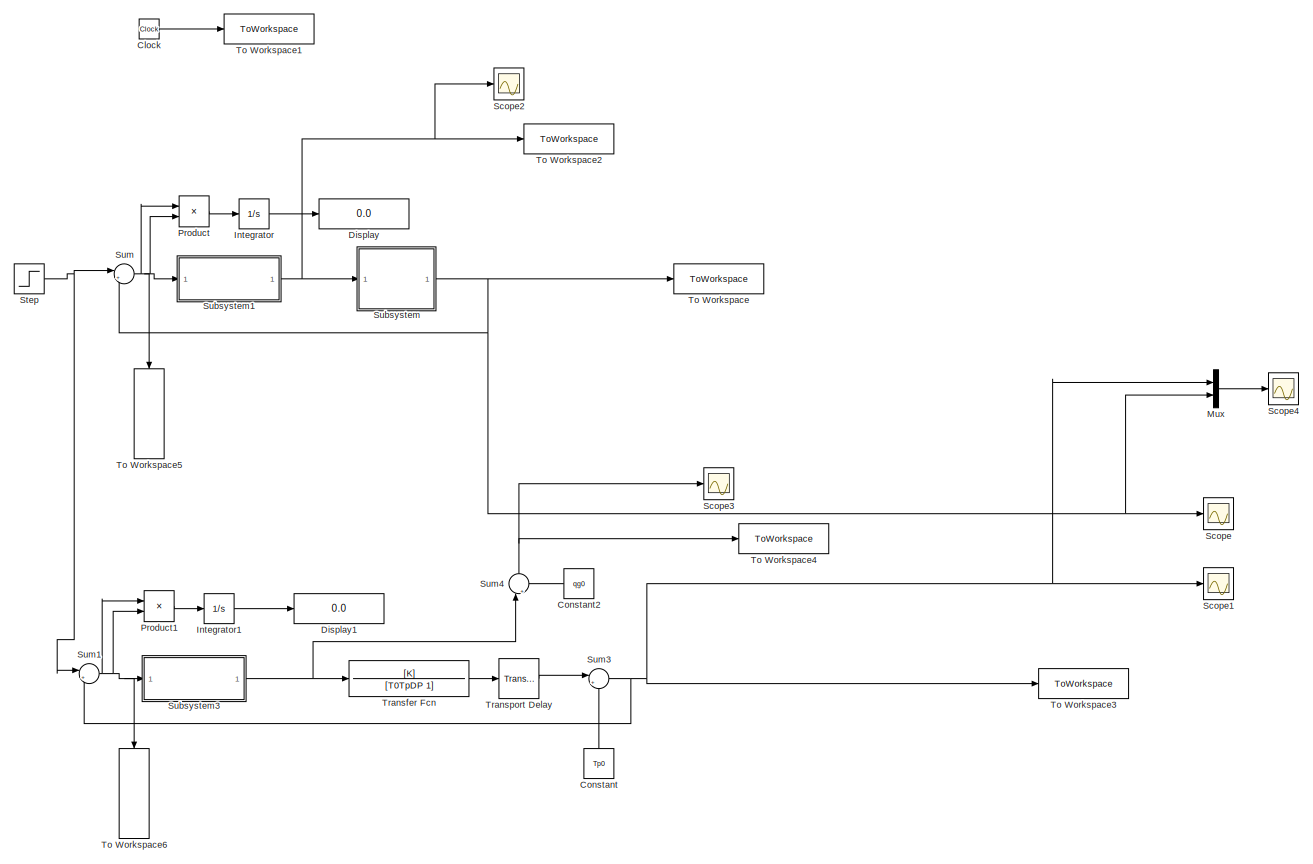
[diagram: root canvas - part 1/2, full width, top band]
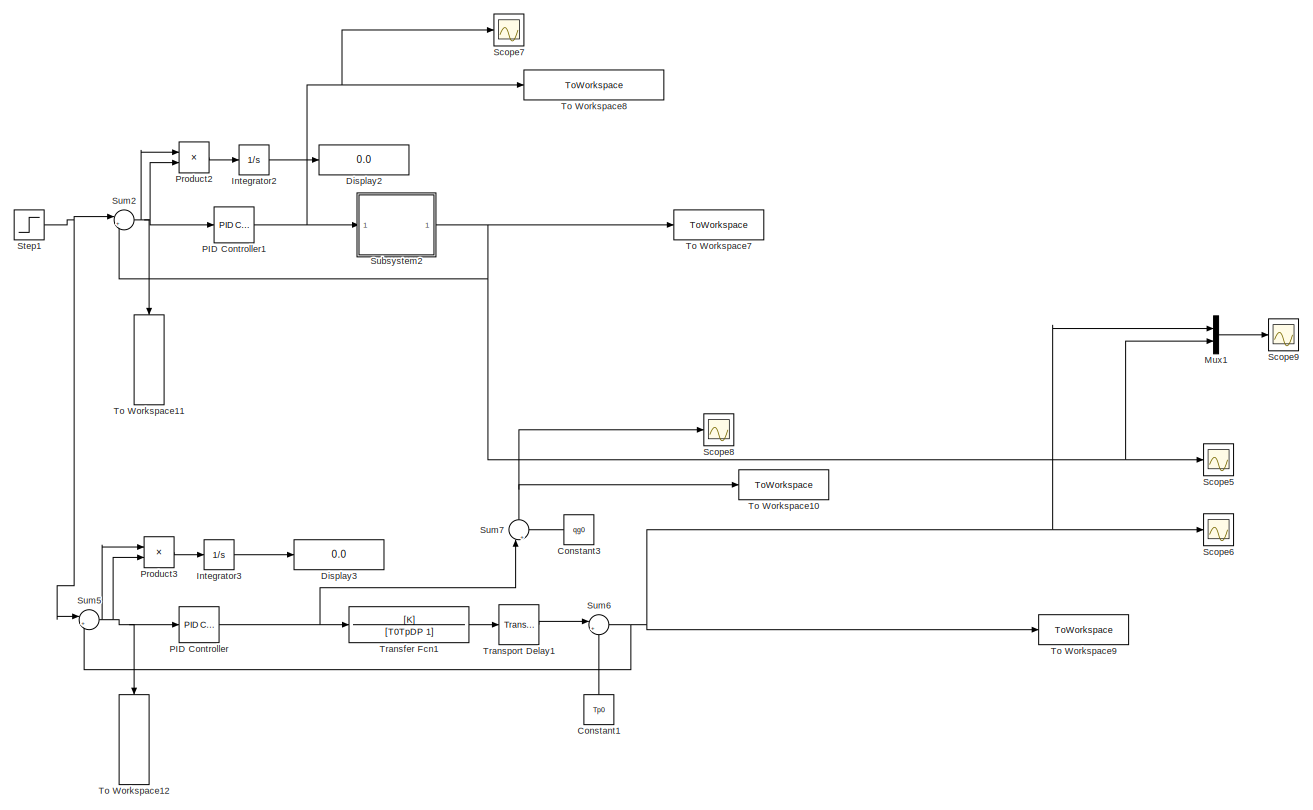
[diagram: root canvas - part 2/2, full width, bottom band]
MODEL slx_341e38c5a6c4
KIND model
CONFIG AbsTol = auto
CONFIG EnableMultiTasking = off
CONFIG FixedStep = auto
CONFIG MaxStep = 0.1
CONFIG MinStep = auto
CONFIG RelTol = 1e-3
CONFIG SampleTimeConstraint = Unconstrained
CONFIG SolverName = VariableStepAuto
CONFIG StartTime = 0.0
CONFIG StopTime = t_simulation
BLOCK [Clock] Clock
  Decimation = 1
BLOCK [Constant] Constant
  NameLocation = right
  Value = Tp0
BLOCK [Constant] Constant1
  NameLocation = right
  Value = Tp0
BLOCK [Constant] Constant2
  NameLocation = top
  Value = qg0
BLOCK [Constant] Constant3
  NameLocation = top
  Value = qg0
BLOCK [Display] Display
  Decimation = 1
  Format = short_e
BLOCK [Display] Display1
  Decimation = 1
  Format = short_e
BLOCK [Display] Display2
  Decimation = 1
  Format = short_e
BLOCK [Display] Display3
  Decimation = 1
  Format = short_e
BLOCK [Integrator] Integrator
BLOCK [Integrator] Integrator1
BLOCK [Integrator] Integrator2
BLOCK [Integrator] Integrator3
BLOCK [Mux] Mux
  DisplayOption = bar
  Inputs = 2
BLOCK [Mux] Mux1
  DisplayOption = bar
  Inputs = 2
BLOCK [Reference] PID Controller  REF=slpidlib/PID Controller
  LibrarySourceBlock = simulink/Continuous/PID Controller
  SourceBlock = slpidlib/PID Controller
  SourceType = PID 1dof
BLOCK [Reference] PID Controller1  REF=slpidlib/PID Controller
  LibrarySourceBlock = simulink/Continuous/PID Controller
  SourceBlock = slpidlib/PID Controller
  SourceType = PID 1dof
BLOCK [Product] Product
BLOCK [Product] Product1
BLOCK [Product] Product2
BLOCK [Product] Product3
BLOCK [Scope] Scope
  Floating = off
  NumInputPorts = 1
  ScopeSpecificationString = Simulink.scopes.TimeScopeBlockCfg('CurrentConfiguration', extmgr.ConfigurationSet(extmgr.Configuration('Core','General UI',true),extmgr.Configuration('Core','Source UI',true),extmgr.Configuration('Sources','WiredSimulink',true,'DataLoggingVariableName','ScopeData1'),extmgr.Configuration('Visuals','Time Domain',true,'SerializedDisplays',{struct('MinYLimReal','9.53463','MaxYLimReal','14.18837','YLab...<+1400ch>
BLOCK [Scope] Scope1
  Floating = off
  NumInputPorts = 1
  ScopeSpecificationString = Simulink.scopes.TimeScopeBlockCfg('CurrentConfiguration', extmgr.ConfigurationSet(extmgr.Configuration('Core','General UI',true),extmgr.Configuration('Core','Source UI',true),extmgr.Configuration('Sources','WiredSimulink',true,'DataLoggingVariableName','ScopeData2'),extmgr.Configuration('Visuals','Time Domain',true,'SerializedDisplays',{struct('MinYLimReal','9.54141','MaxYLimReal','14.12731','YLab...<+1391ch>
BLOCK [Scope] Scope2
  Floating = off
  NumInputPorts = 1
  ScopeSpecificationString = Simulink.scopes.TimeScopeBlockCfg('CurrentConfiguration', extmgr.ConfigurationSet(extmgr.Configuration('Core','General UI',true),extmgr.Configuration('Core','Source UI',true),extmgr.Configuration('Sources','WiredSimulink',true,'DataLoggingVariableName','ScopeData3'),extmgr.Configuration('Visuals','Time Domain',true,'SerializedDisplays',{struct('MinYLimReal','9522.91664','MaxYLimReal','14293.75025'...<+1395ch>
BLOCK [Scope] Scope3
  Floating = off
  NumInputPorts = 1
  ScopeSpecificationString = Simulink.scopes.TimeScopeBlockCfg('CurrentConfiguration', extmgr.ConfigurationSet(extmgr.Configuration('Core','General UI',true),extmgr.Configuration('Core','Source UI',true),extmgr.Configuration('Sources','WiredSimulink',true),extmgr.Configuration('Visuals','Time Domain',true,'SerializedDisplays',{struct('MinYLimReal','9522.86662','MaxYLimReal','14294.20045','YLabelReal','','MinYLimMag','9522.866...<+1377ch>
BLOCK [Scope] Scope4
  Floating = off
  NumInputPorts = 1
  ScopeSpecificationString = Simulink.scopes.TimeScopeBlockCfg('CurrentConfiguration', extmgr.ConfigurationSet(extmgr.Configuration('Core','General UI',true,'FigureColor',[1 1 1]),extmgr.Configuration('Core','Source UI',true),extmgr.Configuration('Sources','WiredSimulink',true,'DataLoggingVariableName','ScopeData1'),extmgr.Configuration('Visuals','Time Domain',true,'SerializedDisplays',{struct('MinYLimReal','9.52394','MaxYLim...<+1754ch>
BLOCK [Scope] Scope5
  Floating = off
  NumInputPorts = 1
  ScopeSpecificationString = Simulink.scopes.TimeScopeBlockCfg('CurrentConfiguration', extmgr.ConfigurationSet(extmgr.Configuration('Core','General UI',true),extmgr.Configuration('Core','Source UI',true),extmgr.Configuration('Sources','WiredSimulink',true,'DataLoggingVariableName','ScopeData2'),extmgr.Configuration('Visuals','Time Domain',true,'SerializedDisplays',{struct('MinYLimReal','-1.4926','MaxYLimReal','17.30021','YLab...<+1401ch>
BLOCK [Scope] Scope6
  Floating = off
  NumInputPorts = 1
  ScopeSpecificationString = Simulink.scopes.TimeScopeBlockCfg('CurrentConfiguration', extmgr.ConfigurationSet(extmgr.Configuration('Core','General UI',true),extmgr.Configuration('Core','Source UI',true),extmgr.Configuration('Sources','WiredSimulink',true,'DataLoggingVariableName','ScopeData3'),extmgr.Configuration('Visuals','Time Domain',true,'SerializedDisplays',{struct('MinYLimReal','9.54141','MaxYLimReal','14.12731','YLab...<+1391ch>
BLOCK [Scope] Scope7
  Floating = off
  NumInputPorts = 1
  ScopeSpecificationString = Simulink.scopes.TimeScopeBlockCfg('CurrentConfiguration', extmgr.ConfigurationSet(extmgr.Configuration('Core','General UI',true),extmgr.Configuration('Core','Source UI',true),extmgr.Configuration('Sources','WiredSimulink',true,'DataLoggingVariableName','ScopeData4'),extmgr.Configuration('Visuals','Time Domain',true,'SerializedDisplays',{struct('MinYLimReal','9522.91664','MaxYLimReal','14293.75025'...<+1395ch>
BLOCK [Scope] Scope8
  Floating = off
  NumInputPorts = 1
  ScopeSpecificationString = Simulink.scopes.TimeScopeBlockCfg('CurrentConfiguration', extmgr.ConfigurationSet(extmgr.Configuration('Core','General UI',true),extmgr.Configuration('Core','Source UI',true),extmgr.Configuration('Sources','WiredSimulink',true,'DataLoggingVariableName','ScopeData5'),extmgr.Configuration('Visuals','Time Domain',true,'SerializedDisplays',{struct('MinYLimReal','9522.86662','MaxYLimReal','14294.20045'...<+1416ch>
BLOCK [Scope] Scope9
  Floating = off
  NumInputPorts = 1
  ScopeSpecificationString = Simulink.scopes.TimeScopeBlockCfg('CurrentConfiguration', extmgr.ConfigurationSet(extmgr.Configuration('Core','General UI',true,'FigureColor',[1 1 1]),extmgr.Configuration('Core','Source UI',true),extmgr.Configuration('Sources','WiredSimulink',true,'DataLoggingVariableName','ScopeData6'),extmgr.Configuration('Visuals','Time Domain',true,'SerializedDisplays',{struct('MinYLimReal','9.48641','MaxYLim...<+1750ch>
BLOCK [Step] Step
  After = Tzad + dTzad
  Before = Tzad
  SampleTime = 0
  Time = t0
BLOCK [Step] Step1
  After = Tzad + dTzad
  Before = Tzad
  SampleTime = 0
  Time = t0
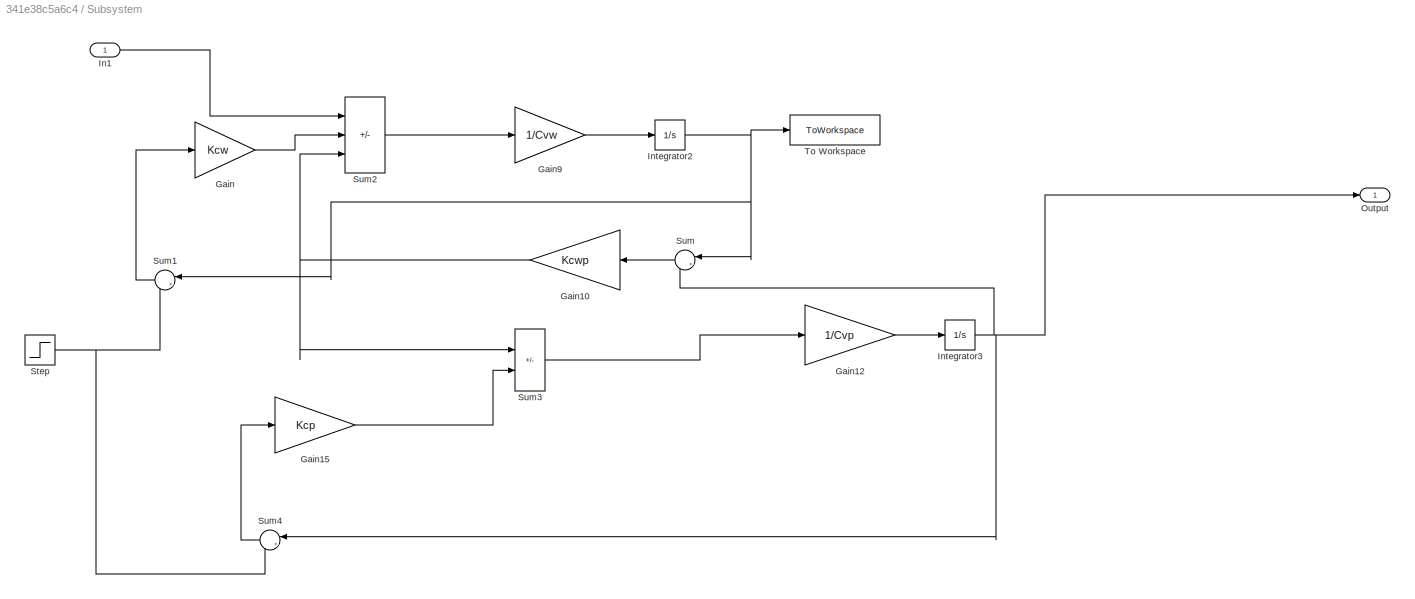
BLOCK [SubSystem] Subsystem
BLOCK [Gain] Subsystem/Gain
  Gain = Kcw
BLOCK [Gain] Subsystem/Gain10
  Gain = Kcwp
  NameLocation = top
BLOCK [Gain] Subsystem/Gain12
  Gain = 1/Cvp
BLOCK [Gain] Subsystem/Gain15
  Gain = Kcp
BLOCK [Gain] Subsystem/Gain9
  Gain = 1/Cvw
BLOCK [Inport] Subsystem/In1
BLOCK [Integrator] Subsystem/Integrator2
  InitialCondition = Twew0
BLOCK [Integrator] Subsystem/Integrator3
  InitialCondition = Tp0
BLOCK [Outport] Subsystem/Output
BLOCK [Step] Subsystem/Step
  After = Tzew0 + dTzew
  Before = Tzew0
  SampleTime = 0
  Time = t0
BLOCK [Sum] Subsystem/Sum
  Inputs = |+-
  NameLocation = top
BLOCK [Sum] Subsystem/Sum1
  Inputs = |+-
  NameLocation = top
BLOCK [Sum] Subsystem/Sum2
  IconShape = rectangular
  Inputs = +--
BLOCK [Sum] Subsystem/Sum3
  IconShape = rectangular
  Inputs = |+-
BLOCK [Sum] Subsystem/Sum4
  Inputs = |+-
  NameLocation = top
BLOCK [ToWorkspace] Subsystem/To Workspace
  FixptAsFi = on
  MaxDataPoints = inf
  SampleTime = -1
  VariableName = Twew
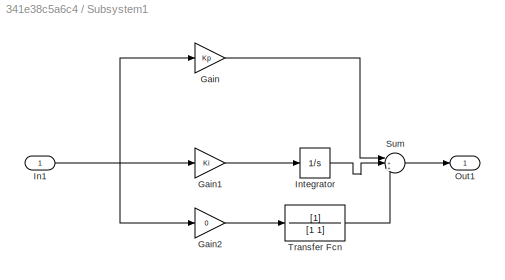
BLOCK [SubSystem] Subsystem1
BLOCK [Gain] Subsystem1/Gain
  Gain = Kp
BLOCK [Gain] Subsystem1/Gain1
  Gain = Ki
BLOCK [Gain] Subsystem1/Gain2
  Gain = 0
BLOCK [Inport] Subsystem1/In1
BLOCK [Integrator] Subsystem1/Integrator
  InitialCondition = qg0
BLOCK [Outport] Subsystem1/Out1
BLOCK [Sum] Subsystem1/Sum
  Inputs = |+++
BLOCK [TransferFcn] Subsystem1/Transfer Fcn
  Denominator = [1 1]
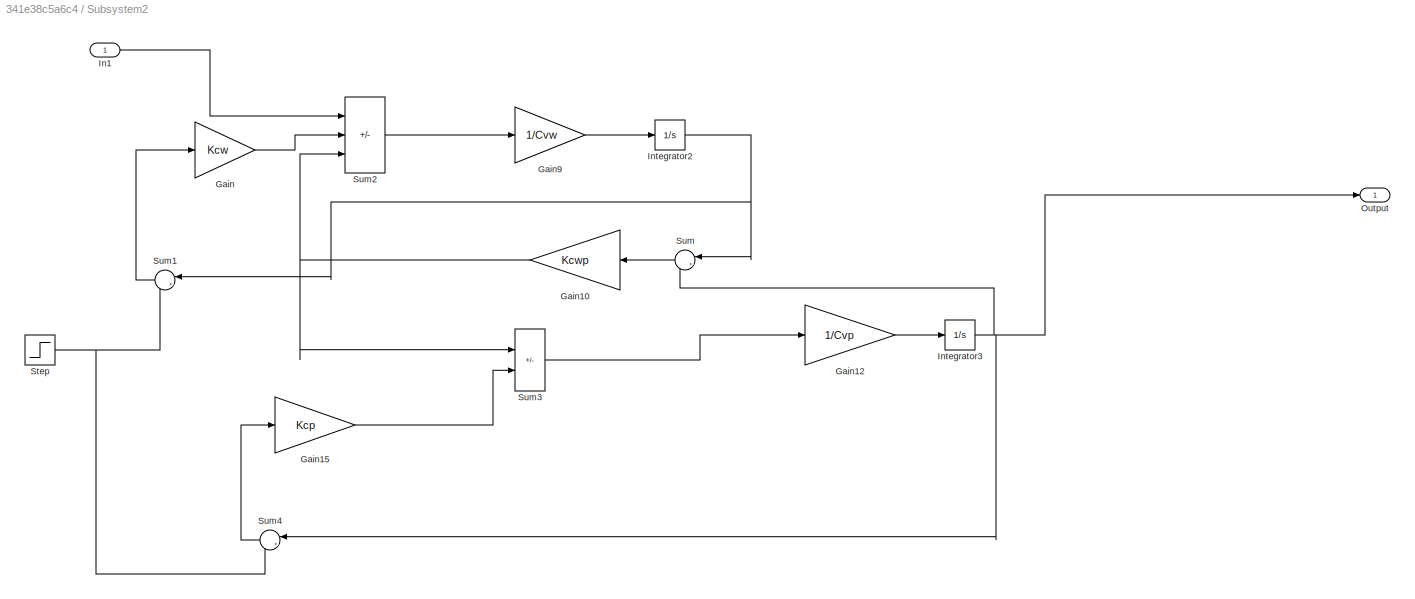
BLOCK [SubSystem] Subsystem2
BLOCK [Gain] Subsystem2/Gain
  Gain = Kcw
BLOCK [Gain] Subsystem2/Gain10
  Gain = Kcwp
  NameLocation = top
BLOCK [Gain] Subsystem2/Gain12
  Gain = 1/Cvp
BLOCK [Gain] Subsystem2/Gain15
  Gain = Kcp
BLOCK [Gain] Subsystem2/Gain9
  Gain = 1/Cvw
BLOCK [Inport] Subsystem2/In1
BLOCK [Integrator] Subsystem2/Integrator2
  InitialCondition = Twew0
BLOCK [Integrator] Subsystem2/Integrator3
  InitialCondition = Tp0
BLOCK [Outport] Subsystem2/Output
BLOCK [Step] Subsystem2/Step
  After = Tzew0 + dTzew
  Before = Tzew0
  SampleTime = 0
  Time = t0
BLOCK [Sum] Subsystem2/Sum
  Inputs = |+-
  NameLocation = top
BLOCK [Sum] Subsystem2/Sum1
  Inputs = |+-
  NameLocation = top
BLOCK [Sum] Subsystem2/Sum2
  IconShape = rectangular
  Inputs = +--
BLOCK [Sum] Subsystem2/Sum3
  IconShape = rectangular
  Inputs = |+-
BLOCK [Sum] Subsystem2/Sum4
  Inputs = |+-
  NameLocation = top
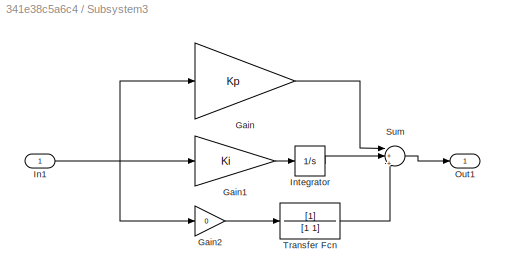
BLOCK [SubSystem] Subsystem3
BLOCK [Gain] Subsystem3/Gain
  Gain = Kp
BLOCK [Gain] Subsystem3/Gain1
  Gain = Ki
BLOCK [Gain] Subsystem3/Gain2
  Gain = 0
BLOCK [Inport] Subsystem3/In1
BLOCK [Integrator] Subsystem3/Integrator
BLOCK [Outport] Subsystem3/Out1
BLOCK [Sum] Subsystem3/Sum
  Inputs = |+++
BLOCK [TransferFcn] Subsystem3/Transfer Fcn
  Denominator = [1 1]
BLOCK [Sum] Sum
  Inputs = |+-
BLOCK [Sum] Sum1
  Inputs = |+-
BLOCK [Sum] Sum2
  Inputs = |+-
BLOCK [Sum] Sum3
  Inputs = |++
BLOCK [Sum] Sum4
  Inputs = |++
  NameLocation = right
BLOCK [Sum] Sum5
  Inputs = |+-
BLOCK [Sum] Sum6
  Inputs = |++
BLOCK [Sum] Sum7
  Inputs = |++
  NameLocation = right
BLOCK [ToWorkspace] To Workspace
  FixptAsFi = on
  MaxDataPoints = inf
  SampleTime = -1
  VariableName = Tp0biekt
BLOCK [ToWorkspace] To Workspace1
  FixptAsFi = on
  MaxDataPoints = inf
  SampleTime = -1
  VariableName = t
BLOCK [ToWorkspace] To Workspace10
  FixptAsFi = on
  MaxDataPoints = inf
  SampleTime = -1
  VariableName = q0ModelPIDTUNER
BLOCK [ToWorkspace] To Workspace11
  FixptAsFi = on
  MaxDataPoints = inf
  NameLocation = left
  SampleTime = -1
  VariableName = e_obiektPIDTUNER
BLOCK [ToWorkspace] To Workspace12
  FixptAsFi = on
  MaxDataPoints = inf
  NameLocation = left
  SampleTime = -1
  VariableName = e_modelPIDTUNER
BLOCK [ToWorkspace] To Workspace2
  FixptAsFi = on
  MaxDataPoints = inf
  SampleTime = -1
  VariableName = q0Obiekt
BLOCK [ToWorkspace] To Workspace3
  FixptAsFi = on
  MaxDataPoints = inf
  SampleTime = -1
  VariableName = TpModel
BLOCK [ToWorkspace] To Workspace4
  FixptAsFi = on
  MaxDataPoints = inf
  SampleTime = -1
  VariableName = q0Model
BLOCK [ToWorkspace] To Workspace5
  FixptAsFi = on
  MaxDataPoints = inf
  NameLocation = left
  SampleTime = -1
  VariableName = e_obiekt
BLOCK [ToWorkspace] To Workspace6
  FixptAsFi = on
  MaxDataPoints = inf
  NameLocation = left
  SampleTime = -1
  VariableName = e_model
BLOCK [ToWorkspace] To Workspace7
  FixptAsFi = on
  MaxDataPoints = inf
  SampleTime = -1
  VariableName = Tp0biektPIDTUNER
BLOCK [ToWorkspace] To Workspace8
  FixptAsFi = on
  MaxDataPoints = inf
  SampleTime = -1
  VariableName = q0ObiektPIDTUNER
BLOCK [ToWorkspace] To Workspace9
  FixptAsFi = on
  MaxDataPoints = inf
  SampleTime = -1
  VariableName = TpModelPIDTUNER
BLOCK [TransferFcn] Transfer Fcn
  Denominator = [T0TpDP 1]
  Numerator = [K]
BLOCK [TransferFcn] Transfer Fcn1
  Denominator = [T0TpDP 1]
  Numerator = [K]
BLOCK [TransportDelay] Transport Delay
  BufferSize = 30000
  DelayTime = trasport_delayDP
BLOCK [TransportDelay] Transport Delay1
  BufferSize = 30000
  DelayTime = trasport_delayDP
LINE Clock:1 -> To Workspace1:1
LINE Constant1:1 -> Sum6:2
LINE Constant2:1 -> Sum4:2
LINE Constant3:1 -> Sum7:2
LINE Constant:1 -> Sum3:2
LINE Integrator1:1 -> Display1:1
LINE Integrator2:1 -> Display2:1
LINE Integrator3:1 -> Display3:1
LINE Integrator:1 -> Display:1
LINE Mux1:1 -> Scope9:1
LINE Mux:1 -> Scope4:1
NET PID Controller1:1 -> Scope7:1, Subsystem2:1, To Workspace8:1
NET PID Controller:1 -> Sum7:1, Transfer Fcn1:1
LINE Product1:1 -> Integrator1:1
LINE Product2:1 -> Integrator2:1
LINE Product3:1 -> Integrator3:1
LINE Product:1 -> Integrator:1
NET Step1:1 -> Sum2:1, Sum5:1
NET Step:1 -> Sum1:1, Sum:1
NET Subsystem/Gain10:1 -> Subsystem/Sum2:3, Subsystem/Sum3:1
LINE Subsystem/Gain12:1 -> Subsystem/Integrator3:1
LINE Subsystem/Gain15:1 -> Subsystem/Sum3:2
LINE Subsystem/Gain9:1 -> Subsystem/Integrator2:1
LINE Subsystem/Gain:1 -> Subsystem/Sum2:2
LINE Subsystem/In1:1 -> Subsystem/Sum2:1
NET Subsystem/Integrator2:1 -> Subsystem/Sum1:1, Subsystem/Sum:1, Subsystem/To Workspace:1
NET Subsystem/Integrator3:1 -> Subsystem/Output:1, Subsystem/Sum4:1, Subsystem/Sum:2
NET Subsystem/Step:1 -> Subsystem/Sum1:2, Subsystem/Sum4:2
LINE Subsystem/Sum1:1 -> Subsystem/Gain:1
LINE Subsystem/Sum2:1 -> Subsystem/Gain9:1
LINE Subsystem/Sum3:1 -> Subsystem/Gain12:1
LINE Subsystem/Sum4:1 -> Subsystem/Gain15:1
LINE Subsystem/Sum:1 -> Subsystem/Gain10:1
LINE Subsystem1/Gain1:1 -> Subsystem1/Integrator:1
LINE Subsystem1/Gain2:1 -> Subsystem1/Transfer Fcn:1
LINE Subsystem1/Gain:1 -> Subsystem1/Sum:1
NET Subsystem1/In1:1 -> Subsystem1/Gain1:1, Subsystem1/Gain2:1, Subsystem1/Gain:1
LINE Subsystem1/Integrator:1 -> Subsystem1/Sum:2
LINE Subsystem1/Sum:1 -> Subsystem1/Out1:1
LINE Subsystem1/Transfer Fcn:1 -> Subsystem1/Sum:3
NET Subsystem1:1 -> Scope2:1, Subsystem:1, To Workspace2:1
NET Subsystem2/Gain10:1 -> Subsystem2/Sum2:3, Subsystem2/Sum3:1
LINE Subsystem2/Gain12:1 -> Subsystem2/Integrator3:1
LINE Subsystem2/Gain15:1 -> Subsystem2/Sum3:2
LINE Subsystem2/Gain9:1 -> Subsystem2/Integrator2:1
LINE Subsystem2/Gain:1 -> Subsystem2/Sum2:2
LINE Subsystem2/In1:1 -> Subsystem2/Sum2:1
NET Subsystem2/Integrator2:1 -> Subsystem2/Sum1:1, Subsystem2/Sum:1
NET Subsystem2/Integrator3:1 -> Subsystem2/Output:1, Subsystem2/Sum4:1, Subsystem2/Sum:2
NET Subsystem2/Step:1 -> Subsystem2/Sum1:2, Subsystem2/Sum4:2
LINE Subsystem2/Sum1:1 -> Subsystem2/Gain:1
LINE Subsystem2/Sum2:1 -> Subsystem2/Gain9:1
LINE Subsystem2/Sum3:1 -> Subsystem2/Gain12:1
LINE Subsystem2/Sum4:1 -> Subsystem2/Gain15:1
LINE Subsystem2/Sum:1 -> Subsystem2/Gain10:1
NET Subsystem2:1 -> Mux1:2, Scope5:1, Sum2:2, To Workspace7:1
LINE Subsystem3/Gain1:1 -> Subsystem3/Integrator:1
LINE Subsystem3/Gain2:1 -> Subsystem3/Transfer Fcn:1
LINE Subsystem3/Gain:1 -> Subsystem3/Sum:1
NET Subsystem3/In1:1 -> Subsystem3/Gain1:1, Subsystem3/Gain2:1, Subsystem3/Gain:1
LINE Subsystem3/Integrator:1 -> Subsystem3/Sum:2
LINE Subsystem3/Sum:1 -> Subsystem3/Out1:1
LINE Subsystem3/Transfer Fcn:1 -> Subsystem3/Sum:3
NET Subsystem3:1 -> Sum4:1, Transfer Fcn:1
NET Subsystem:1 -> Mux:2, Scope:1, Sum:2, To Workspace:1
NET Sum1:1 -> Product1:1, Product1:2, Subsystem3:1, To Workspace6:1
NET Sum2:1 -> PID Controller1:1, Product2:1, Product2:2, To Workspace11:1
NET Sum3:1 -> Mux:1, Scope1:1, Sum1:2, To Workspace3:1
NET Sum4:1 -> Scope3:1, To Workspace4:1
NET Sum5:1 -> PID Controller:1, Product3:1, Product3:2, To Workspace12:1
NET Sum6:1 -> Mux1:1, Scope6:1, Sum5:2, To Workspace9:1
NET Sum7:1 -> Scope8:1, To Workspace10:1
NET Sum:1 -> Product:1, Product:2, Subsystem1:1, To Workspace5:1
LINE Transfer Fcn1:1 -> Transport Delay1:1
LINE Transfer Fcn:1 -> Transport Delay:1
LINE Transport Delay1:1 -> Sum6:1
LINE Transport Delay:1 -> Sum3:1
note: NET lines group one-source signal fan-out (src -> all destinations, sorted); 1:1 wires keep LINE
